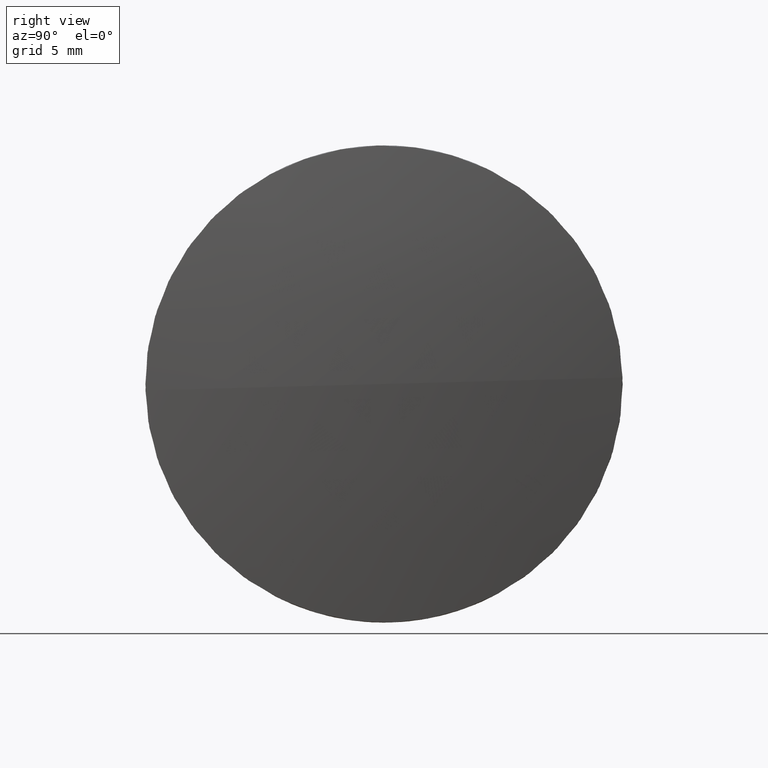
[diagram: clean part render]
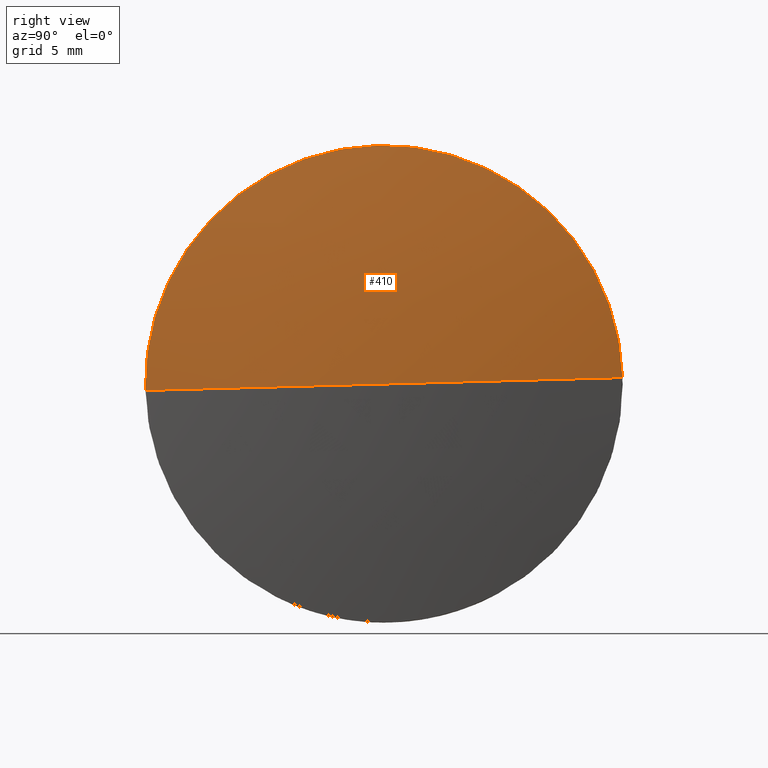
[diagram: same view with one face highlighted and labeled with its STEP entity id]
A machine part, right view. The second image highlights one B-rep face of the part: STEP entity #410.
In plain terms, the highlighted spherical surface has radius 93.08 mm.
Its self-contained STEP definition (entity closure, byte-faithful):
#1 = VERTEX_POINT ( 'NONE', #321 ) ;
#6 = DIRECTION ( 'NONE',  ( 0.000000000000000000, -0.9996398438148723642, -0.02683621914088217889 ) ) ;
#25 = AXIS2_PLACEMENT_3D ( 'NONE', #412, #105, #196 ) ;
#28 = EDGE_CURVE ( 'NONE', #169, #338, #80, .T. ) ;
#31 = ORIENTED_EDGE ( 'NONE', *, *, #267, .F. ) ;
#35 = CARTESIAN_POINT ( 'NONE',  ( -25.54043365315157033, 32.03284803661707514, 9.296114308592563594E-16 ) ) ;
#50 = VERTEX_POINT ( 'NONE', #435 ) ;
#80 = CIRCLE ( 'NONE', #295, 93.08000000000001251 ) ;
#100 = CARTESIAN_POINT ( 'NONE',  ( -117.7499581069735797, 32.03284803661707514, -3.869129372501819444E-15 ) ) ;
#105 = DIRECTION ( 'NONE',  ( -1.000000000000000000, -3.326383087162362862E-17, -5.204170427930421283E-17 ) ) ;
#117 = ORIENTED_EDGE ( 'NONE', *, *, #28, .F. ) ;
#133 = EDGE_CURVE ( 'NONE', #338, #50, #367, .T. ) ;
#140 = CARTESIAN_POINT ( 'NONE',  ( -24.66995810697358849, 32.03284803661708224, 1.127865659280562322E-15 ) ) ;
#141 = EDGE_CURVE ( 'NONE', #169, #1, #175, .T. ) ;
#153 = AXIS2_PLACEMENT_3D ( 'NONE', #439, #263, #394 ) ;
#167 = AXIS2_PLACEMENT_3D ( 'NONE', #100, #170, #6 ) ;
#169 = VERTEX_POINT ( 'NONE', #140 ) ;
#170 = DIRECTION ( 'NONE',  ( -5.113028568288731202E-17, -0.02683621914088218582, 0.9996398438148724752 ) ) ;
#175 = CIRCLE ( 'NONE', #167, 93.08000000000001251 ) ;
#178 = ORIENTED_EDGE ( 'NONE', *, *, #141, .T. ) ;
#196 = DIRECTION ( 'NONE',  ( 0.000000000000000000, -0.02683621914088239746, 0.9996398438148724752 ) ) ;
#203 = EDGE_LOOP ( 'NONE', ( #117, #178, #31, #393 ) ) ;
#207 = CARTESIAN_POINT ( 'NONE',  ( -25.54043365315156677, 19.33742202016823342, -0.3408199830892033044 ) ) ;
#256 = CARTESIAN_POINT ( 'NONE',  ( -117.7499581069735797, 32.03284803661707514, -3.869129372501819444E-15 ) ) ;
#263 = DIRECTION ( 'NONE',  ( 5.113028568288731202E-17, 0.02683621914088218582, -0.9996398438148724752 ) ) ;
#267 = EDGE_CURVE ( 'NONE', #50, #1, #356, .T. ) ;
#295 = AXIS2_PLACEMENT_3D ( 'NONE', #256, #346, #349 ) ;
#304 = DIRECTION ( 'NONE',  ( 0.000000000000000000, -0.02683621914088239746, 0.9996398438148724752 ) ) ;
#309 = DIRECTION ( 'NONE',  ( -1.000000000000000000, -3.326383087162362862E-17, -5.204170427930421283E-17 ) ) ;
#316 = SPHERICAL_SURFACE ( 'NONE', #153, 93.07999999999999829 ) ;
#321 = CARTESIAN_POINT ( 'NONE',  ( -25.54043365315156677, 44.72827405306590975, 0.3408199830892035265 ) ) ;
#338 = VERTEX_POINT ( 'NONE', #207 ) ;
#344 = FACE_OUTER_BOUND ( 'NONE', #203, .T. ) ;
#346 = DIRECTION ( 'NONE',  ( 5.113028568288730586E-17, 0.02683621914088230725, -0.9996398438148724752 ) ) ;
#349 = DIRECTION ( 'NONE',  ( 0.000000000000000000, 0.9996398438148723642, 0.02683621914088230379 ) ) ;
#356 = CIRCLE ( 'NONE', #25, 12.69999999999999929 ) ;
#367 = CIRCLE ( 'NONE', #395, 12.69999999999999929 ) ;
#393 = ORIENTED_EDGE ( 'NONE', *, *, #133, .F. ) ;
#394 = DIRECTION ( 'NONE',  ( 0.000000000000000000, 0.9996398438148724752, 0.02683621914088218582 ) ) ;
#395 = AXIS2_PLACEMENT_3D ( 'NONE', #35, #309, #304 ) ;
#410 = ADVANCED_FACE ( 'NONE', ( #344 ), #316, .T. ) ;
#412 = CARTESIAN_POINT ( 'NONE',  ( -25.54043365315157033, 32.03284803661707514, 9.296114308592563594E-16 ) ) ;
#435 = CARTESIAN_POINT ( 'NONE',  ( -25.54043365315157033, 31.69202805352786712, 12.69542601644887725 ) ) ;
#439 = CARTESIAN_POINT ( 'NONE',  ( -117.7499581069735797, 32.03284803661707514, -3.869129372501819444E-15 ) ) ;